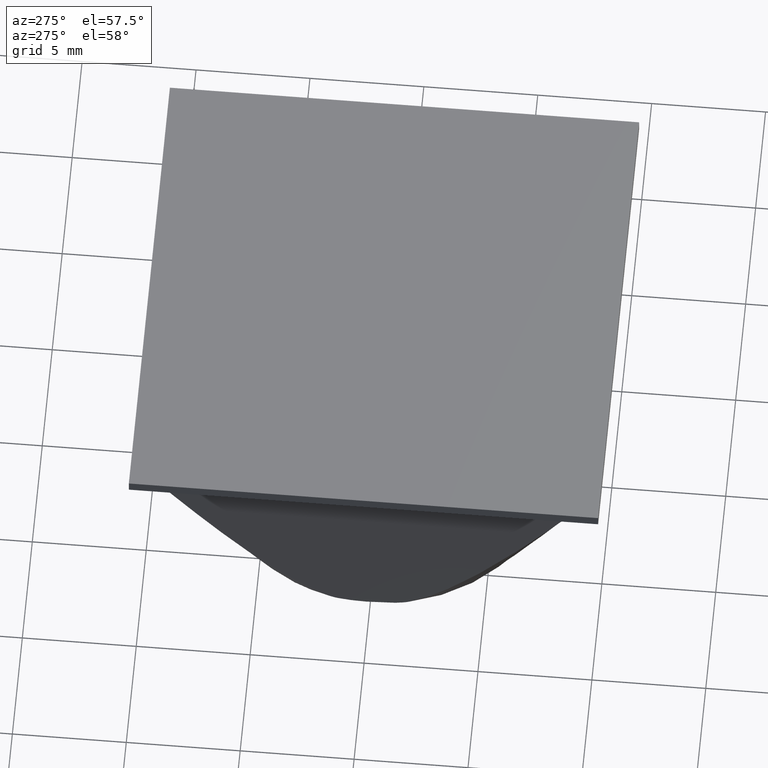
[diagram: clean part render]
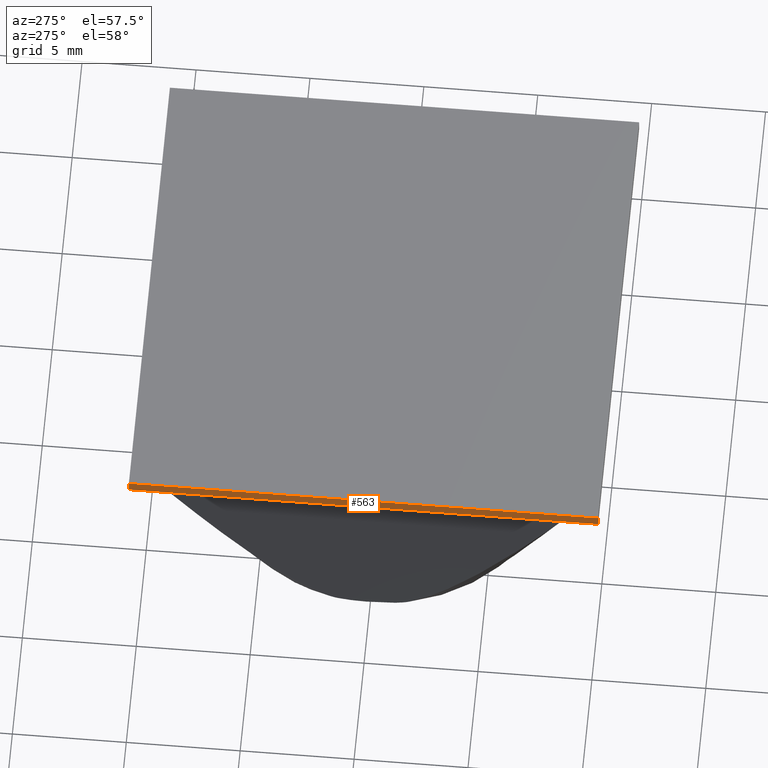
[diagram: same view with one face highlighted and labeled with its STEP entity id]
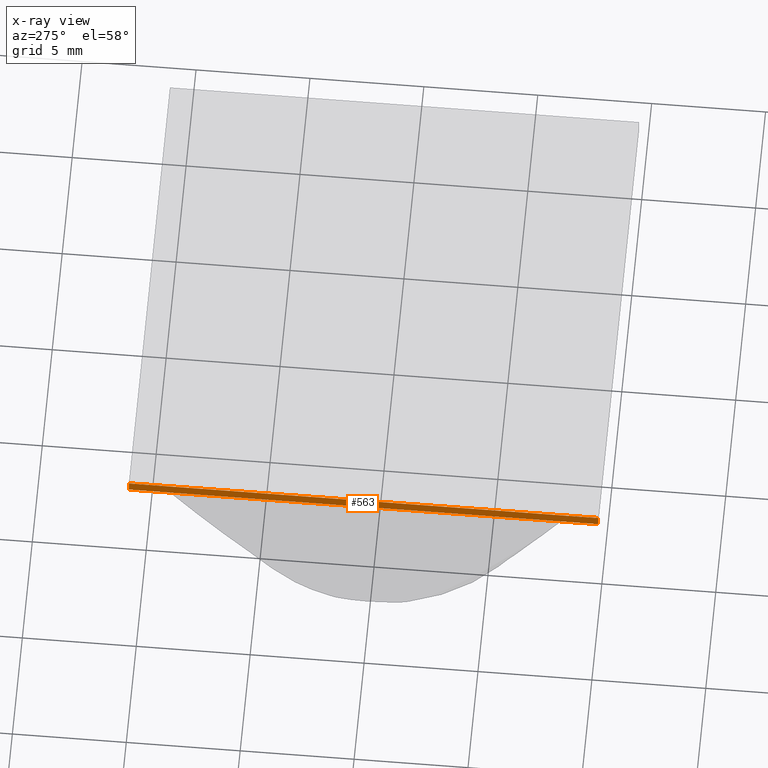
[diagram: x-ray of the same camera — body ghosted, the highlighted face saturated]
A machine part, auxiliary view. The second image highlights one B-rep face of the part: STEP entity #563.
The next image is the same camera in x-ray: the body ghosted, the highlighted face saturated — about 0% of this face is hidden behind the body in this view.
In plain terms, the highlighted face is a freeform B-spline surface patch.
Its self-contained STEP definition (entity closure, byte-faithful):
#440=CARTESIAN_POINT('',(-10.300000000000001,-10.300000000000001,12.699999999999999));
#441=VERTEX_POINT('',#440);
#447=CARTESIAN_POINT('',(-10.300000000000001,10.300000000000001,12.699999999999999));
#448=VERTEX_POINT('',#447);
#449=CARTESIAN_POINT('',(-10.300000000000001,-10.300000000000001,12.699999999999999));
#450=CARTESIAN_POINT('',(-10.300000000000001,10.300000000000001,12.699999999999999));
#451=QUASI_UNIFORM_CURVE('',1,(#449,#450),.UNSPECIFIED.,.F.,.U.);
#452=EDGE_CURVE('',#441,#448,#451,.T.);
#506=CARTESIAN_POINT('',(-10.300000000000001,10.300000000000001,13.199999999999999));
#507=VERTEX_POINT('',#506);
#513=CARTESIAN_POINT('',(-10.300000000000001,-10.300000000000001,13.199999999999999));
#514=VERTEX_POINT('',#513);
#515=CARTESIAN_POINT('',(-10.300000000000001,-10.300000000000001,13.199999999999999));
#516=CARTESIAN_POINT('',(-10.300000000000001,10.300000000000001,13.199999999999999));
#517=QUASI_UNIFORM_CURVE('',1,(#515,#516),.UNSPECIFIED.,.F.,.U.);
#518=EDGE_CURVE('',#514,#507,#517,.T.);
#534=CARTESIAN_POINT('',(-10.300000000000001,10.300000000000001,13.199999999999999));
#535=CARTESIAN_POINT('',(-10.300000000000001,10.300000000000001,12.699999999999999));
#536=QUASI_UNIFORM_CURVE('',1,(#534,#535),.UNSPECIFIED.,.F.,.U.);
#537=EDGE_CURVE('',#507,#448,#536,.T.);
#548=CARTESIAN_POINT('',(-10.300000000000001,-11.328970153451269,12.675024809860590));
#549=CARTESIAN_POINT('',(-10.300000000000001,-11.328970153451269,13.224974796748761));
#550=CARTESIAN_POINT('',(-10.300000000000001,11.328970521807969,12.675024809860590));
#551=CARTESIAN_POINT('',(-10.300000000000001,11.328970521807969,13.224974796748761));
#552=B_SPLINE_SURFACE_WITH_KNOTS('',1,1,((#548,#550),(#549,#551)),.UNSPECIFIED.,.F.,.F.,.U.,(2,2),(2,2),(0.041708016434312,0.958291327914596),(0.0,22.657940675259240),.UNSPECIFIED.);
#553=ORIENTED_EDGE('',*,*,#452,.F.);
#554=CARTESIAN_POINT('',(-10.300000000000001,-10.300000000000001,13.199999999999999));
#555=CARTESIAN_POINT('',(-10.300000000000001,-10.300000000000001,12.699999999999999));
#556=QUASI_UNIFORM_CURVE('',1,(#554,#555),.UNSPECIFIED.,.F.,.U.);
#557=EDGE_CURVE('',#514,#441,#556,.T.);
#558=ORIENTED_EDGE('',*,*,#557,.F.);
#559=ORIENTED_EDGE('',*,*,#518,.T.);
#560=ORIENTED_EDGE('',*,*,#537,.T.);
#561=EDGE_LOOP('',(#553,#558,#559,#560));
#562=FACE_OUTER_BOUND('',#561,.T.);
#563=ADVANCED_FACE('',(#562),#552,.T.);